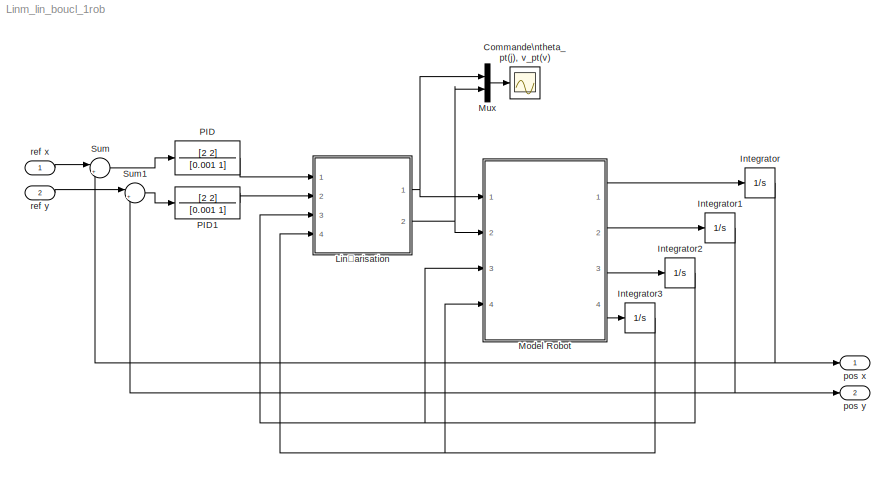
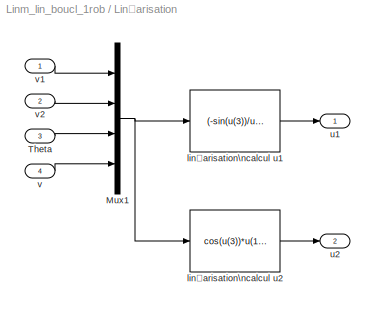
MODEL Linm_lin_boucl_1rob
KIND model
BLOCK [Scope] Commande\ntheta_pt(j), v_pt(v)
  DataFormat = StructureWithTime
  Floating = off
  NumInputPorts = 1
  Ports = [1]
  SID = 68
  SampleTime = 0
BLOCK [Integrator] Integrator
  Ports = [1, 1]
  SID = 69
BLOCK [Integrator] Integrator1
  Ports = [1, 1]
  SID = 70
BLOCK [Integrator] Integrator2
  InitialCondition = 1
  Ports = [1, 1]
  SID = 71
BLOCK [Integrator] Integrator3
  InitialCondition = 2
  Ports = [1, 1]
  SID = 72
BLOCK [SubSystem] Linéarisation
  FunctionWithSeparateData = off
  MaskHideContents = off
  MinAlgLoopOccurrences = off
  Opaque = off
  Ports = [4, 2]
  PropExecContextOutsideSubsystem = off
  RTWSystemCode = Auto
  RequestExecContextInheritance = off
  SID = 73
BLOCK [Mux] Linéarisation/Mux1
  DisplayOption = bar
  Ports = [4, 1]
  SID = 78
BLOCK [Inport] Linéarisation/Theta
  IconDisplay = Port number
  Port = 3
  SID = 76
BLOCK [Fcn] Linéarisation/linéarisation\ncalcul u1
  Expr = (-sin(u(3))/u(4))*u(1)+(cos(u(3))/u(4))*u(2)
  SID = 79
BLOCK [Fcn] Linéarisation/linéarisation\ncalcul u2
  Expr = cos(u(3))*u(1)+sin(u(3))*u(2)
  SID = 80
BLOCK [Outport] Linéarisation/u1
  IconDisplay = Port number
  SID = 81
BLOCK [Outport] Linéarisation/u2
  IconDisplay = Port number
  Port = 2
  SID = 82
BLOCK [Inport] Linéarisation/v
  IconDisplay = Port number
  Port = 4
  SID = 77
BLOCK [Inport] Linéarisation/v1
  IconDisplay = Port number
  SID = 74
BLOCK [Inport] Linéarisation/v2
  IconDisplay = Port number
  Port = 2
  SID = 75
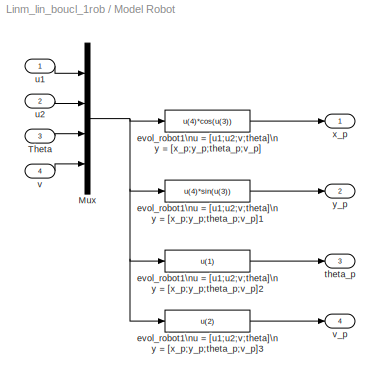
BLOCK [SubSystem] Model Robot
  FunctionWithSeparateData = off
  MaskHideContents = off
  MinAlgLoopOccurrences = off
  Opaque = off
  Ports = [4, 4]
  PropExecContextOutsideSubsystem = off
  RTWSystemCode = Auto
  RequestExecContextInheritance = off
  SID = 83
BLOCK [Mux] Model Robot/Mux
  DisplayOption = bar
  Ports = [4, 1]
  SID = 88
BLOCK [Inport] Model Robot/Theta
  IconDisplay = Port number
  Port = 3
  SID = 86
BLOCK [Fcn] Model Robot/evol_robot1\nu = [u1;u2;v;theta]\ny = [x_p;y_p;theta_p;v_p]
  Expr = u(4)*cos(u(3))
  SID = 89
BLOCK [Fcn] Model Robot/evol_robot1\nu = [u1;u2;v;theta]\ny = [x_p;y_p;theta_p;v_p]1
  Expr = u(4)*sin(u(3))
  SID = 90
BLOCK [Fcn] Model Robot/evol_robot1\nu = [u1;u2;v;theta]\ny = [x_p;y_p;theta_p;v_p]2
  Expr = u(1)
  SID = 91
BLOCK [Fcn] Model Robot/evol_robot1\nu = [u1;u2;v;theta]\ny = [x_p;y_p;theta_p;v_p]3
  Expr = u(2)
  SID = 92
BLOCK [Outport] Model Robot/theta_p
  IconDisplay = Port number
  Port = 3
  SID = 95
BLOCK [Inport] Model Robot/u1
  IconDisplay = Port number
  SID = 84
BLOCK [Inport] Model Robot/u2
  IconDisplay = Port number
  Port = 2
  SID = 85
BLOCK [Inport] Model Robot/v
  IconDisplay = Port number
  Port = 4
  SID = 87
BLOCK [Outport] Model Robot/v_p
  IconDisplay = Port number
  Port = 4
  SID = 96
BLOCK [Outport] Model Robot/x_p
  IconDisplay = Port number
  SID = 93
BLOCK [Outport] Model Robot/y_p
  IconDisplay = Port number
  Port = 2
  SID = 94
BLOCK [Mux] Mux
  DisplayOption = bar
  Inputs = 2
  Ports = [2, 1]
  SID = 97
BLOCK [TransferFcn] PID
  Denominator = [0.001 1]
  Numerator = [2 2]
  SID = 108
BLOCK [TransferFcn] PID1
  Denominator = [0.001 1]
  Numerator = [2 2]
  SID = 109
BLOCK [Sum] Sum
  IconShape = round
  InputSameDT = off
  Inputs = |+-
  OutDataType = fixdt(1, 16)
  OutDataTypeMode = Inherit via internal rule
  OutDataTypeStr = Inherit: Inherit via internal rule
  OutScaling = 2^0
  Ports = [2, 1]
  SID = 100
  SaturateOnIntegerOverflow = off
BLOCK [Sum] Sum1
  IconShape = round
  InputSameDT = off
  Inputs = |+-
  OutDataType = fixdt(1, 16)
  OutDataTypeMode = Inherit via internal rule
  OutDataTypeStr = Inherit: Inherit via internal rule
  OutScaling = 2^0
  Ports = [2, 1]
  SID = 101
  SaturateOnIntegerOverflow = off
BLOCK [Outport] pos x
  IconDisplay = Port number
  SID = 102
BLOCK [Outport] pos y
  IconDisplay = Port number
  Port = 2
  SID = 104
BLOCK [Inport] ref x
  IconDisplay = Port number
  SID = 66
BLOCK [Inport] ref y
  IconDisplay = Port number
  Port = 2
  SID = 67
NET Integrator1:1 -> Sum1:2, pos y:1
NET Integrator2:1 -> Linéarisation:3, Model Robot:3
NET Integrator3:1 -> Linéarisation:4, Model Robot:4
NET Integrator:1 -> Sum:2, pos x:1
NET Linéarisation/Mux1:1 -> Linéarisation/linéarisation\ncalcul u1:1, Linéarisation/linéarisation\ncalcul u2:1
LINE Linéarisation/Theta:1 -> Linéarisation/Mux1:3
LINE Linéarisation/linéarisation\ncalcul u1:1 -> Linéarisation/u1:1
LINE Linéarisation/linéarisation\ncalcul u2:1 -> Linéarisation/u2:1
LINE Linéarisation/v1:1 -> Linéarisation/Mux1:1
LINE Linéarisation/v2:1 -> Linéarisation/Mux1:2
LINE Linéarisation/v:1 -> Linéarisation/Mux1:4
NET Linéarisation:1 -> Model Robot:1, Mux:1
NET Linéarisation:2 -> Model Robot:2, Mux:2
NET Model Robot/Mux:1 -> Model Robot/evol_robot1\nu = [u1;u2;v;theta]\ny = [x_p;y_p;theta_p;v_p]1:1, Model Robot/evol_robot1\nu = [u1;u2;v;theta]\ny = [x_p;y_p;theta_p;v_p]2:1, Model Robot/evol_robot1\nu = [u1;u2;v;theta]\ny = [x_p;y_p;theta_p;v_p]3:1, Model Robot/evol_robot1\nu = [u1;u2;v;theta]\ny = [x_p;y_p;theta_p;v_p]:1
LINE Model Robot/Theta:1 -> Model Robot/Mux:3
LINE Model Robot/evol_robot1\nu = [u1;u2;v;theta]\ny = [x_p;y_p;theta_p;v_p]1:1 -> Model Robot/y_p:1
LINE Model Robot/evol_robot1\nu = [u1;u2;v;theta]\ny = [x_p;y_p;theta_p;v_p]2:1 -> Model Robot/theta_p:1
LINE Model Robot/evol_robot1\nu = [u1;u2;v;theta]\ny = [x_p;y_p;theta_p;v_p]3:1 -> Model Robot/v_p:1
LINE Model Robot/evol_robot1\nu = [u1;u2;v;theta]\ny = [x_p;y_p;theta_p;v_p]:1 -> Model Robot/x_p:1
LINE Model Robot/u1:1 -> Model Robot/Mux:1
LINE Model Robot/u2:1 -> Model Robot/Mux:2
LINE Model Robot/v:1 -> Model Robot/Mux:4
LINE Model Robot:1 -> Integrator:1
LINE Model Robot:2 -> Integrator1:1
LINE Model Robot:3 -> Integrator2:1
LINE Model Robot:4 -> Integrator3:1
LINE Mux:1 -> Commande\ntheta_pt(j), v_pt(v):1
LINE PID1:1 -> Linéarisation:2
LINE PID:1 -> Linéarisation:1
LINE Sum1:1 -> PID1:1
LINE Sum:1 -> PID:1
LINE ref x:1 -> Sum:1
LINE ref y:1 -> Sum1:1
note: NET lines group one-source signal fan-out (src -> all destinations, sorted); 1:1 wires keep LINE
